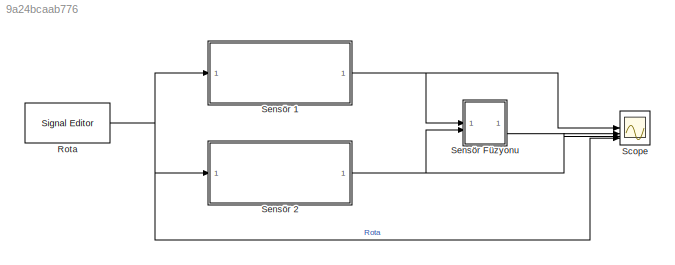
MODEL slx_9a24bcaab776
KIND model
CONFIG AbsTol = auto
CONFIG EnableMultiTasking = off
CONFIG FixedStep = auto
CONFIG MaxStep = auto
CONFIG MinStep = auto
CONFIG RelTol = 1e-3
CONFIG SampleTimeConstraint = Unconstrained
CONFIG SolverName = VariableStepAuto
CONFIG StartTime = 0.0
CONFIG StopTime = 100
BLOCK [Reference] Rota  REF=SignalEditorBlockLib/Signal Editor
  LibrarySourceBlock = simulink/Sources/Signal Editor
  SourceBlock = SignalEditorBlockLib/Signal Editor
  SourceType = SignalEditor
  UserDataPersistent = on
BLOCK [Scope] Scope
  ActiveDisplayYMaximum = 27.092254677562277
  ActiveDisplayYMinimum = -5.2071706376905018
  ContainerLayout = {"WindowBounds":[-298,185,1554,867]}
  Floating = off
  GraphicalSettings = {"AxesScalingProperties":{"AlignXAxis":"Center","AlignYAxis":"Center","AutoScaleXAxisLimits":false,"AxesScaling":"Manual","AxesScalingNumUpdates":10,"ExpandOnly":true,"ScaleAxesLimitsAtStop":false,"XAxisDataRange":100,"YAxisDataRange":80},"DisplayProperties":{"ColorOrder":["auto","auto","auto","auto","auto","auto","auto","auto","auto","auto","auto","auto","auto","auto","auto","auto","auto","auto",...<+2334ch>
  LayoutDimensionsString = [1 1]
  MultipleDisplayCache = [{"MaxYLimMag":27.092254677562277,"MaxYLimReal":27.092254677562277,"MinYLimMag":0,"MinYLimReal":-5.2071706376905018,"PlotAsMagnitudePhase":false,"ShowGrid":true,"ShowLegend":true,"Title":"%<SignalLabel>","YLabel":""}]
  NumInputPorts = 4
  ScopeFrameLocation = container
  ShowLegend = on
  Visible = on
  WasSavedAsWebScope = on
  WindowPosition = [1.000000,49.000000,1536.000000,792.000000,]
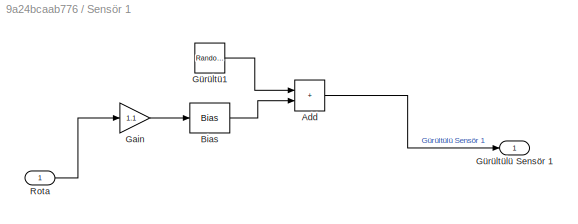
BLOCK [SubSystem] Sensör 1
BLOCK [Sum] Sensör 1/Add
  IconShape = rectangular
BLOCK [Bias] Sensör 1/Bias
  Bias = 0.2
  SaturateOnIntegerOverflow = off
BLOCK [Gain] Sensör 1/Gain
  Gain = 1.1
BLOCK [RandomNumber] Sensör 1/Gürültü1
  SampleTime = 0.1
BLOCK [Outport] Sensör 1/Gürültülü Sensör 1
BLOCK [Inport] Sensör 1/Rota
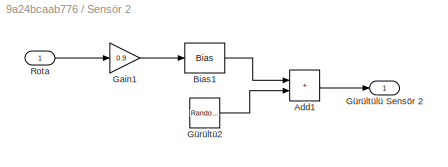
BLOCK [SubSystem] Sensör 2
BLOCK [Sum] Sensör 2/Add1
  IconShape = rectangular
BLOCK [Bias] Sensör 2/Bias1
  Bias = -0.1
  SaturateOnIntegerOverflow = off
BLOCK [Gain] Sensör 2/Gain1
  Gain = 0.9
BLOCK [RandomNumber] Sensör 2/Gürültü2
  SampleTime = 0.1
  Variance = 2
BLOCK [Outport] Sensör 2/Gürültülü Sensör 2
BLOCK [Inport] Sensör 2/Rota
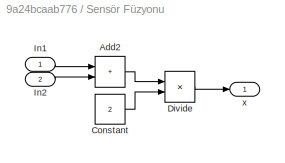
BLOCK [SubSystem] Sensör Füzyonu
BLOCK [Sum] Sensör Füzyonu/Add2
  IconShape = rectangular
BLOCK [Constant] Sensör Füzyonu/Constant
  Value = 2
BLOCK [Product] Sensör Füzyonu/Divide
  Inputs = */
BLOCK [Inport] Sensör Füzyonu/In1
BLOCK [Inport] Sensör Füzyonu/In2
  Port = 2
BLOCK [Outport] Sensör Füzyonu/x
NET Rota:1 -> Scope:4, Sensör 1:1, Sensör 2:1
LINE Sensör 1/Add:1 -> Sensör 1/Gürültülü Sensör 1:1
LINE Sensör 1/Bias:1 -> Sensör 1/Add:2
LINE Sensör 1/Gain:1 -> Sensör 1/Bias:1
LINE Sensör 1/Gürültü1:1 -> Sensör 1/Add:1
LINE Sensör 1/Rota:1 -> Sensör 1/Gain:1
NET Sensör 1:1 -> Scope:1, Sensör Füzyonu:1
LINE Sensör 2/Add1:1 -> Sensör 2/Gürültülü Sensör 2:1
LINE Sensör 2/Bias1:1 -> Sensör 2/Add1:1
LINE Sensör 2/Gain1:1 -> Sensör 2/Bias1:1
LINE Sensör 2/Gürültü2:1 -> Sensör 2/Add1:2
LINE Sensör 2/Rota:1 -> Sensör 2/Gain1:1
NET Sensör 2:1 -> Scope:3, Sensör Füzyonu:2
LINE Sensör Füzyonu/Add2:1 -> Sensör Füzyonu/Divide:1
LINE Sensör Füzyonu/Constant:1 -> Sensör Füzyonu/Divide:2
LINE Sensör Füzyonu/Divide:1 -> Sensör Füzyonu/x:1
LINE Sensör Füzyonu/In1:1 -> Sensör Füzyonu/Add2:1
LINE Sensör Füzyonu/In2:1 -> Sensör Füzyonu/Add2:2
LINE Sensör Füzyonu:1 -> Scope:2
note: NET lines group one-source signal fan-out (src -> all destinations, sorted); 1:1 wires keep LINE
